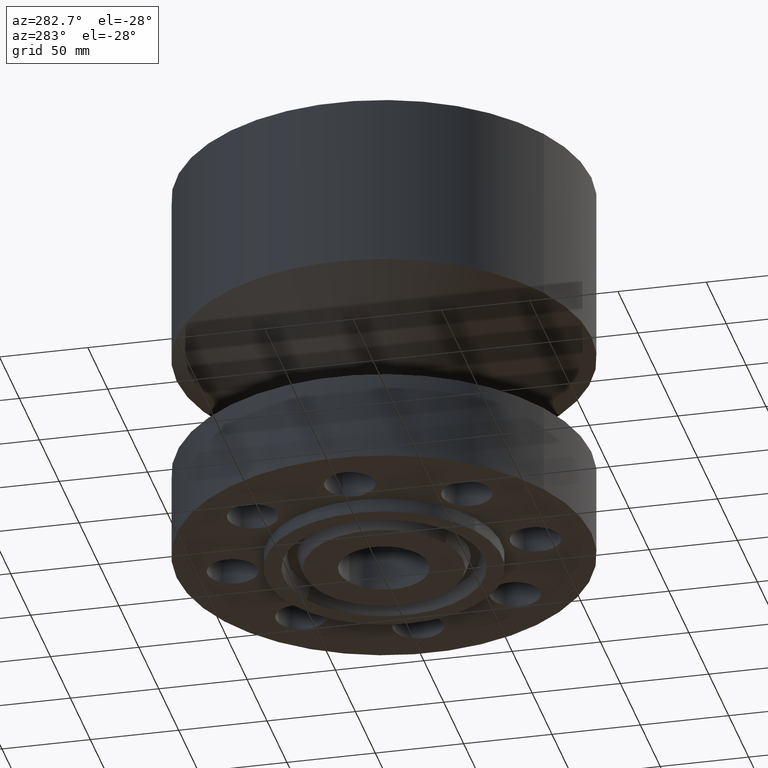
[diagram: clean part render]
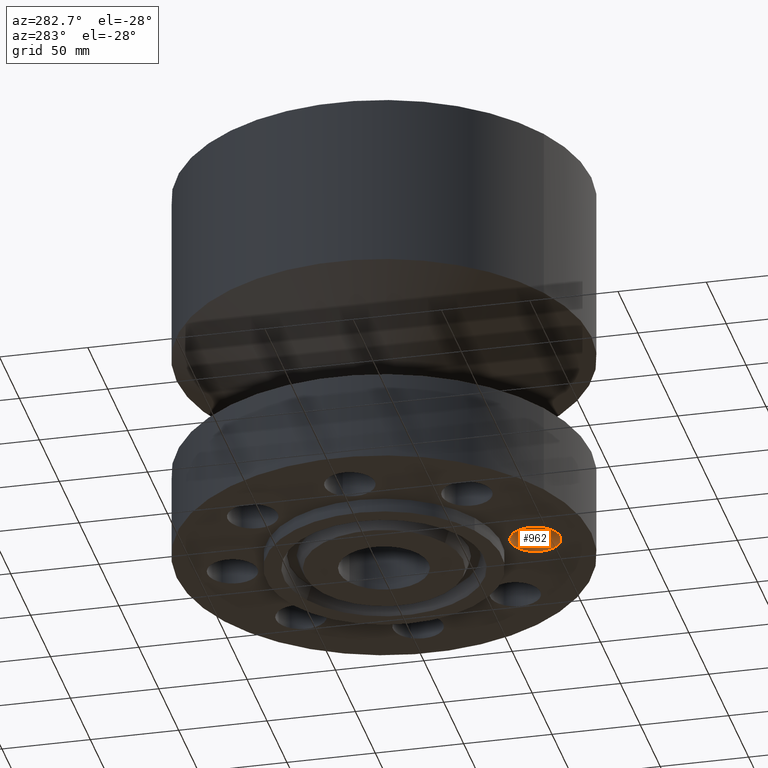
[diagram: same view with one face highlighted and labeled with its STEP entity id]
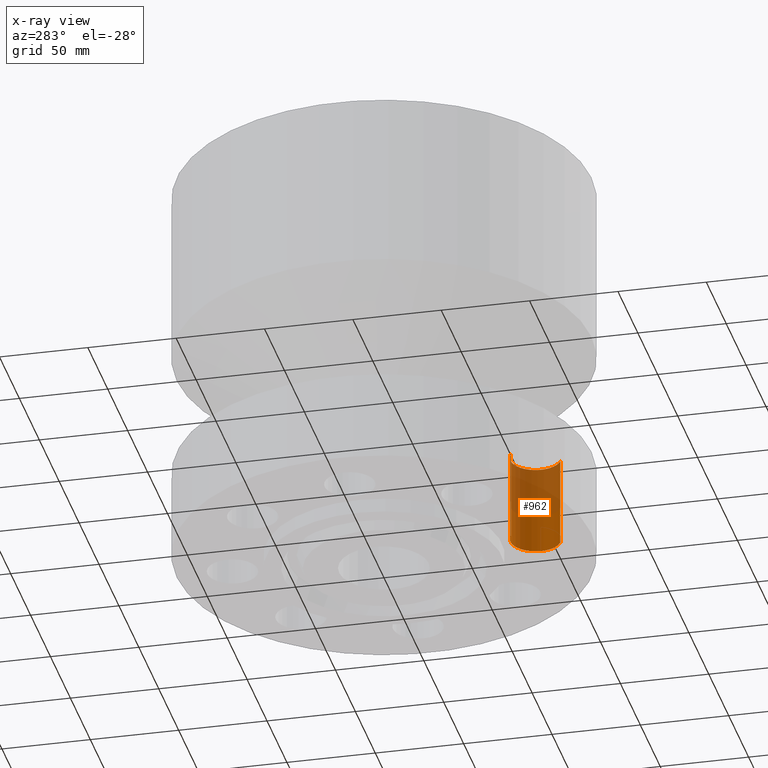
[diagram: x-ray of the same camera — body ghosted, the highlighted face saturated]
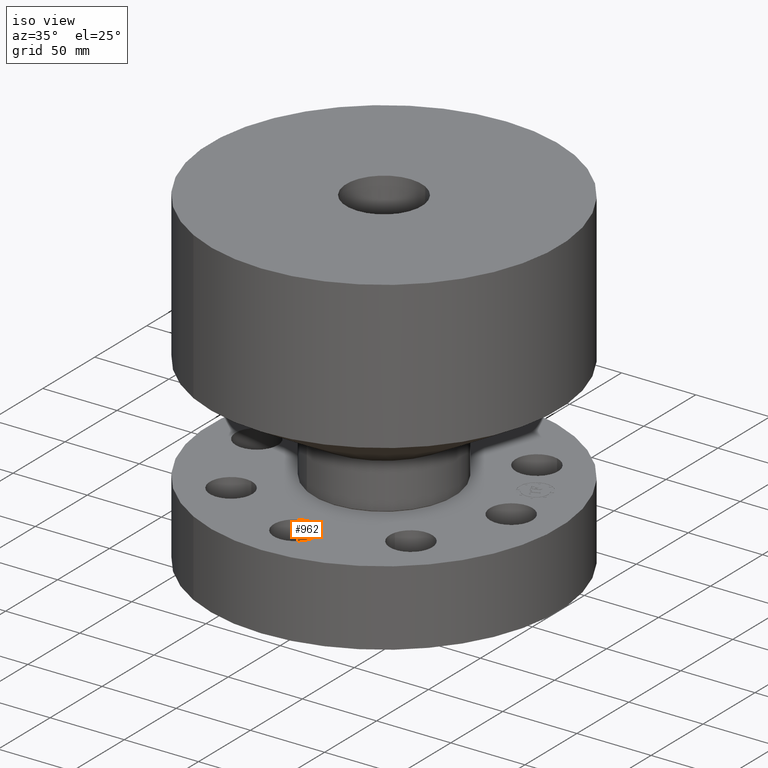
[diagram: same view with one face highlighted and labeled with its STEP entity id]
A machine part, auxiliary view. The second image highlights one B-rep face of the part: STEP entity #962.
The next image is the same camera in x-ray: the body ghosted, the highlighted face saturated — about 58% of this face is hidden behind the body in this view.
A second angle (iso view) of the same face is appended — the face is thin or edge-on in the first view.
In plain terms, the highlighted cylindrical surface (edge-blend (fillet) strip) has radius 14.224 mm, axis along (-0, 0, 1).
Its self-contained STEP definition (entity closure, byte-faithful):
#154=AXIS2_PLACEMENT_3D('Circle Axis2P3D',#152,#153,$) ;
#923=AXIS2_PLACEMENT_3D('Cylinder Axis2P3D',#920,#921,#922) ;
#953=AXIS2_PLACEMENT_3D('Circle Axis2P3D',#951,#952,$) ;
#147=CARTESIAN_POINT('Vertex',(0.268478301619,-3.86644623467,0.)) ;
#149=CARTESIAN_POINT('Vertex',(-0.268478301619,-2.88355376535,0.)) ;
#152=CARTESIAN_POINT('Axis2P3D Location',(-6.99353086378E-017,-3.37500000001,0.)) ;
#920=CARTESIAN_POINT('Axis2P3D Location',(-3.52823321745E-016,-3.37500000001,0.00393700787402)) ;
#925=CARTESIAN_POINT('Line Origine',(0.268478301619,-3.86644623467,1.)) ;
#929=CARTESIAN_POINT('Vertex',(0.268478301619,-3.86644623467,2.00000000001)) ;
#932=CARTESIAN_POINT('Line Origine',(-0.268478301619,-2.88355376535,1.)) ;
#936=CARTESIAN_POINT('Vertex',(-0.268478301619,-2.88355376535,2.00000000001)) ;
#951=CARTESIAN_POINT('Axis2P3D Location',(-3.52823321745E-016,-3.37500000001,2.00000000001)) ;
#153=DIRECTION('Axis2P3D Direction',(0.,0.,-0.0393700787402)) ;
#921=DIRECTION('Axis2P3D Direction',(-0.,0.,0.0393700787402)) ;
#922=DIRECTION('Axis2P3D XDirection',(0.0188750212049,-0.0345504945626,0.)) ;
#926=DIRECTION('Vector Direction',(0.,0.,0.0393700787402)) ;
#933=DIRECTION('Vector Direction',(0.,0.,0.0393700787402)) ;
#952=DIRECTION('Axis2P3D Direction',(-0.,0.,0.0393700787402)) ;
#927=VECTOR('Line Direction',#926,0.0393700787402) ;
#934=VECTOR('Line Direction',#933,0.0393700787402) ;
#957=ORIENTED_EDGE('',*,*,#938,.T.) ;
#958=ORIENTED_EDGE('',*,*,#156,.T.) ;
#959=ORIENTED_EDGE('',*,*,#931,.F.) ;
#960=ORIENTED_EDGE('',*,*,#955,.F.) ;
#962=ADVANCED_FACE('PartBody',(#961),#924,.F.) ;
#155=CIRCLE('generated circle',#154,0.560000000002) ;
#954=CIRCLE('generated circle',#953,0.560000000002) ;
#924=CYLINDRICAL_SURFACE('generated cylinder',#923,0.560000000002) ;
#156=EDGE_CURVE('',#150,#148,#155,.T.) ;
#931=EDGE_CURVE('',#930,#148,#928,.F.) ;
#938=EDGE_CURVE('',#937,#150,#935,.F.) ;
#955=EDGE_CURVE('',#937,#930,#954,.F.) ;
#956=EDGE_LOOP('',(#957,#958,#959,#960)) ;
#961=FACE_OUTER_BOUND('',#956,.T.) ;
#928=LINE('Line',#925,#927) ;
#935=LINE('Line',#932,#934) ;
#148=VERTEX_POINT('',#147) ;
#150=VERTEX_POINT('',#149) ;
#930=VERTEX_POINT('',#929) ;
#937=VERTEX_POINT('',#936) ;